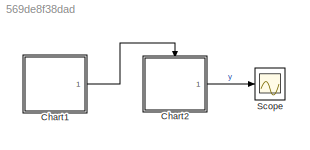
MODEL slx_569de8f38dad
KIND model
CONFIG AbsTol = auto
CONFIG EnableMultiTasking = off
CONFIG FixedStep = auto
CONFIG MaxStep = auto
CONFIG MinStep = auto
CONFIG RelTol = 1e-3
CONFIG SampleTimeConstraint = Unconstrained
CONFIG Solver = VariableStepAuto
CONFIG SolverName = VariableStepAuto
CONFIG StartTime = 0.0
CONFIG StopTime = 2.0
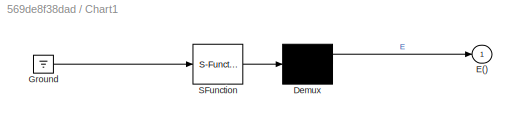
BLOCK [SubSystem] Chart1
  ErrorFcn = Stateflow.Translate.translate
  PermitHierarchicalResolution = ExplicitOnly
  Ports = [0, 1]
  RequestExecContextInheritance = off
  SFBlockType = Chart
  TreatAsAtomicUnit = on
BLOCK [Demux] Chart1/ Demux 
  Outputs = 1
  Ports = [1, 1]
BLOCK [Ground] Chart1/ Ground 
BLOCK [S-Function] Chart1/ SFunction 
  EnableBusSupport = on
  FunctionName = sf_sfun
  PortCounts = [1 1]
  Ports = [1, 1]
  SFcnIsStateOwnerBlock = off
  SFunctionDeploymentMode = off
  Tag = Stateflow S-Function 3
BLOCK [Outport] Chart1/E()
  VectorParamsAs1DForOutWhenUnconnected = off
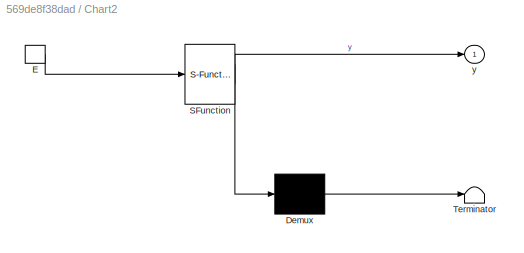
BLOCK [SubSystem] Chart2
  ErrorFcn = Stateflow.Translate.translate
  PermitHierarchicalResolution = ExplicitOnly
  Ports = [0, 1, 0, 1]
  RequestExecContextInheritance = off
  SFBlockType = Chart
  TreatAsAtomicUnit = on
BLOCK [Demux] Chart2/ Demux 
  Outputs = 1
  Ports = [1, 1]
BLOCK [S-Function] Chart2/ SFunction 
  EnableBusSupport = on
  FunctionName = sf_sfun
  PortCounts = [1 2]
  Ports = [1, 2]
  SFcnIsStateOwnerBlock = off
  SFunctionDeploymentMode = off
  Tag = Stateflow S-Function 1
BLOCK [Terminator] Chart2/ Terminator 
BLOCK [TriggerPort] Chart2/E
  Ports = [0, 1]
  ShowOutputPort = on
  StatesWhenEnabling = reset
  TriggerType = function-call
  VariantControl = (inherit)
BLOCK [Outport] Chart2/y
BLOCK [Scope] Scope
  Floating = off
  NumInputPorts = 1
  Ports = [1]
  ScopeSpecificationString = Simulink.scopes.TimeScopeBlockCfg('CurrentConfiguration', extmgr.ConfigurationSet(extmgr.Configuration('Core','General UI',true),extmgr.Configuration('Core','Source UI',true),extmgr.Configuration('Sources','WiredSimulink',true),extmgr.Configuration('Visuals','Time Domain',true,'SerializedDisplays',{struct('MinYLimReal','-1.00000','MaxYLimReal','9.00000','YLabelReal','','MinYLimMag','0.00000','MaxY...<+1389ch>
LINE Chart1:1 -> Chart2:trigger
LINE Chart2:1 -> Scope:1
CHART Chart2 states=1 transitions=1
  STATE_LABEL 'A\nen:y = 0;\ndu:y = y + 1;\n'
CHART Chart1 states=3 transitions=3
  STATE_LABEL 'A\nen:\nf("en_chart1");\ndu:f("du_chart1");\nsend(E);\n'
  STATE_LABEL 'B\nen:f("en_B");\ndu:f("du_B");'
  STATE_LABEL 'f(s)'
  STATE_LABEL 'SCRIPT:\nfunction f(s)\n  fprintf(s+"\\n");\n'
CHART  states=0 transitions=0
CHART  states=0 transitions=0
